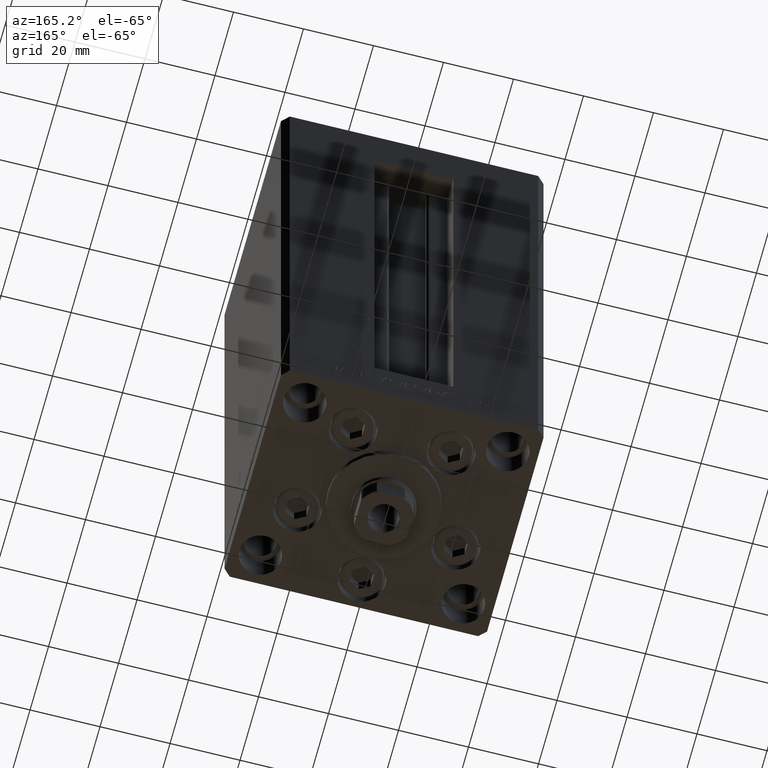
[diagram: clean part render]
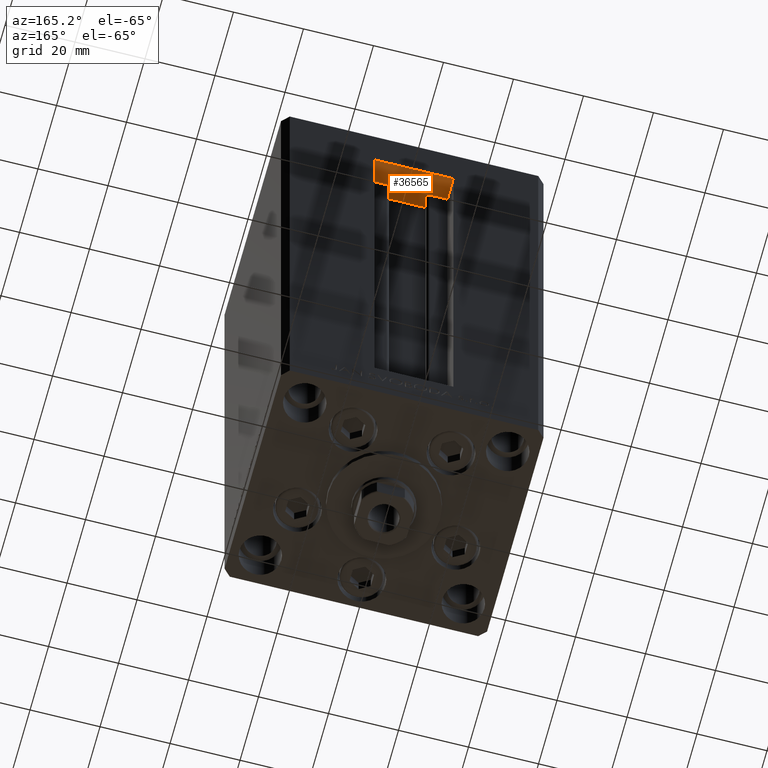
[diagram: same view with one face highlighted and labeled with its STEP entity id]
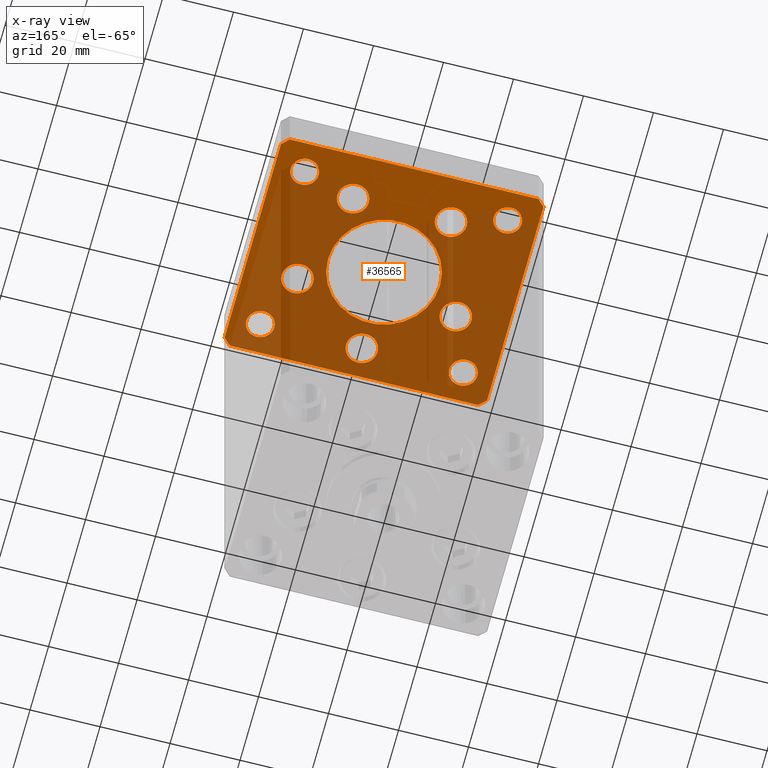
[diagram: x-ray of the same camera — body ghosted, the highlighted face saturated]
A machine part, auxiliary view. The second image highlights one B-rep face of the part: STEP entity #36565.
The next image is the same camera in x-ray: the body ghosted, the highlighted face saturated — about 77% of this face is hidden behind the body in this view.
In plain terms, the highlighted planar face has unit normal (0, 0, 1).
Its self-contained STEP definition (entity closure, byte-faithful):
#103 = EDGE_LOOP ( 'NONE', ( #28146, #39239 ) ) ;
#190 = DIRECTION ( 'NONE',  ( 0.000000000000000000, 0.000000000000000000, 1.000000000000000000 ) ) ;
#539 = ORIENTED_EDGE ( 'NONE', *, *, #44942, .F. ) ;
#1403 = AXIS2_PLACEMENT_3D ( 'NONE', #28638, #17601, #44207 ) ;
#1482 = EDGE_CURVE ( 'NONE', #16166, #37822, #17703, .T. ) ;
#1662 = ORIENTED_EDGE ( 'NONE', *, *, #33135, .F. ) ;
#1817 = DIRECTION ( 'NONE',  ( 0.7071067811865487940, 0.7071067811865463515, 0.000000000000000000 ) ) ;
#2120 = ORIENTED_EDGE ( 'NONE', *, *, #34519, .F. ) ;
#2228 = CIRCLE ( 'NONE', #1403, 4.499999999999999112 ) ;
#2606 = ORIENTED_EDGE ( 'NONE', *, *, #46643, .F. ) ;
#2636 = DIRECTION ( 'NONE',  ( 0.7071067811865474617, -0.7071067811865474617, 0.000000000000000000 ) ) ;
#2888 = CARTESIAN_POINT ( 'NONE',  ( 9.491068579633218150, 19.50000000000000000, -15.00000000000000000 ) ) ;
#2903 = CARTESIAN_POINT ( 'NONE',  ( 35.49999999999992184, 32.50000000000000711, -15.00000000000000000 ) ) ;
#3156 = CIRCLE ( 'NONE', #16009, 4.499999999999999112 ) ;
#3164 = VERTEX_POINT ( 'NONE', #33406 ) ;
#3684 = CARTESIAN_POINT ( 'NONE',  ( -13.99106857963322703, 19.49999999999999645, -15.00000000000000000 ) ) ;
#3738 = AXIS2_PLACEMENT_3D ( 'NONE', #21671, #10344, #10596 ) ;
#3953 = EDGE_CURVE ( 'NONE', #33588, #8808, #14585, .T. ) ;
#3993 = EDGE_CURVE ( 'NONE', #5642, #30111, #27417, .T. ) ;
#4090 = ORIENTED_EDGE ( 'NONE', *, *, #16353, .F. ) ;
#5283 = CARTESIAN_POINT ( 'NONE',  ( -18.12741699796952233, -8.000000000000005329, -15.00000000000000000 ) ) ;
#5636 = DIRECTION ( 'NONE',  ( 0.000000000000000000, -0.000000000000000000, -1.000000000000000000 ) ) ;
#5642 = VERTEX_POINT ( 'NONE', #10174 ) ;
#5727 = VECTOR ( 'NONE', #1817, 1000.000000000000000 ) ;
#5855 = DIRECTION ( 'NONE',  ( -1.478780668045802821E-15, 1.000000000000000000, 0.000000000000000000 ) ) ;
#6273 = DIRECTION ( 'NONE',  ( 0.000000000000000000, -0.000000000000000000, -1.000000000000000000 ) ) ;
#6338 = EDGE_CURVE ( 'NONE', #30725, #41695, #15193, .T. ) ;
#6375 = CARTESIAN_POINT ( 'NONE',  ( 37.49999999999992184, 30.50000000000001066, -15.00000000000000000 ) ) ;
#6425 = AXIS2_PLACEMENT_3D ( 'NONE', #32818, #48611, #47860 ) ;
#6904 = AXIS2_PLACEMENT_3D ( 'NONE', #31469, #38747, #11869 ) ;
#6924 = EDGE_CURVE ( 'NONE', #11489, #38437, #8248, .T. ) ;
#7019 = CIRCLE ( 'NONE', #6904, 4.000000000000003553 ) ;
#7049 = VECTOR ( 'NONE', #27420, 1000.000000000000000 ) ;
#7064 = VERTEX_POINT ( 'NONE', #24584 ) ;
#7294 = CARTESIAN_POINT ( 'NONE',  ( 37.50000000000001421, -30.50000000000000711, -15.00000000000000000 ) ) ;
#7397 = EDGE_LOOP ( 'NONE', ( #12609, #41262 ) ) ;
#8036 = CIRCLE ( 'NONE', #22484, 4.000000000000003553 ) ;
#8130 = CARTESIAN_POINT ( 'NONE',  ( -37.49999999999998579, -30.50000000000001421, -15.00000000000000000 ) ) ;
#8203 = DIRECTION ( 'NONE',  ( 1.000000000000000000, 0.000000000000000000, 0.000000000000000000 ) ) ;
#8248 = CIRCLE ( 'NONE', #30711, 4.500000000000005329 ) ;
#8264 = CARTESIAN_POINT ( 'NONE',  ( 13.99106857963322348, 19.50000000000000000, -15.00000000000000000 ) ) ;
#8334 = CARTESIAN_POINT ( 'NONE',  ( 0.000000000000000000, 0.000000000000000000, -15.00000000000000000 ) ) ;
#8498 = CARTESIAN_POINT ( 'NONE',  ( -16.00000000000000000, 1.959434878635764737E-15, -15.00000000000000000 ) ) ;
#8808 = VERTEX_POINT ( 'NONE', #36749 ) ;
#9193 = VECTOR ( 'NONE', #37080, 1000.000000000000000 ) ;
#9873 = ORIENTED_EDGE ( 'NONE', *, *, #6338, .F. ) ;
#10174 = CARTESIAN_POINT ( 'NONE',  ( -33.00000000000000711, -23.99999999999999289, -15.00000000000000000 ) ) ;
#10181 = AXIS2_PLACEMENT_3D ( 'NONE', #46150, #190, #38631 ) ;
#10211 = ORIENTED_EDGE ( 'NONE', *, *, #3993, .F. ) ;
#10342 = ORIENTED_EDGE ( 'NONE', *, *, #26006, .F. ) ;
#10344 = DIRECTION ( 'NONE',  ( 0.000000000000000000, -0.000000000000000000, -1.000000000000000000 ) ) ;
#10596 = DIRECTION ( 'NONE',  ( 1.000000000000000000, 0.000000000000000000, 0.000000000000000000 ) ) ;
#10634 = VERTEX_POINT ( 'NONE', #23222 ) ;
#10696 = LINE ( 'NONE', #2903, #9193 ) ;
#10723 = AXIS2_PLACEMENT_3D ( 'NONE', #8334, #39474, #35228 ) ;
#11098 = ORIENTED_EDGE ( 'NONE', *, *, #16124, .F. ) ;
#11489 = VERTEX_POINT ( 'NONE', #2888 ) ;
#11597 = DIRECTION ( 'NONE',  ( 0.000000000000000000, -0.000000000000000000, -1.000000000000000000 ) ) ;
#11869 = DIRECTION ( 'NONE',  ( -1.000000000000000000, 0.000000000000000000, 0.000000000000000000 ) ) ;
#11995 = AXIS2_PLACEMENT_3D ( 'NONE', #27544, #5636, #46607 ) ;
#12103 = ORIENTED_EDGE ( 'NONE', *, *, #31896, .F. ) ;
#12483 = VECTOR ( 'NONE', #43316, 999.9999999999998863 ) ;
#12609 = ORIENTED_EDGE ( 'NONE', *, *, #24097, .T. ) ;
#12690 = EDGE_CURVE ( 'NONE', #10634, #30082, #13118, .T. ) ;
#13015 = CARTESIAN_POINT ( 'NONE',  ( 2.939152317953647500E-15, -24.00000000000000000, -15.00000000000000000 ) ) ;
#13058 = DIRECTION ( 'NONE',  ( 1.000000000000000000, 0.000000000000000000, 0.000000000000000000 ) ) ;
#13118 = CIRCLE ( 'NONE', #10723, 16.00000000000000000 ) ;
#13644 = CIRCLE ( 'NONE', #6425, 4.499999999999997335 ) ;
#14081 = CARTESIAN_POINT ( 'NONE',  ( -22.62741699796951877, -8.000000000000005329, -15.00000000000000000 ) ) ;
#14585 = CIRCLE ( 'NONE', #20995, 4.000000000000000000 ) ;
#14979 = FACE_BOUND ( 'NONE', #22568, .T. ) ;
#15124 = DIRECTION ( 'NONE',  ( -0.000000000000000000, -0.000000000000000000, -1.000000000000000000 ) ) ;
#15193 = LINE ( 'NONE', #49589, #35480 ) ;
#15319 = EDGE_CURVE ( 'NONE', #41828, #48820, #23676, .T. ) ;
#15329 = CIRCLE ( 'NONE', #26561, 16.00000000000000000 ) ;
#15469 = FACE_BOUND ( 'NONE', #27049, .T. ) ;
#15963 = FACE_BOUND ( 'NONE', #103, .T. ) ;
#16009 = AXIS2_PLACEMENT_3D ( 'NONE', #3684, #42620, #8203 ) ;
#16081 = ORIENTED_EDGE ( 'NONE', *, *, #12690, .F. ) ;
#16124 = EDGE_CURVE ( 'NONE', #25009, #21979, #10696, .T. ) ;
#16166 = VERTEX_POINT ( 'NONE', #18754 ) ;
#16292 = CARTESIAN_POINT ( 'NONE',  ( 29.00000000000001066, 24.00000000000000711, -15.00000000000000000 ) ) ;
#16353 = EDGE_CURVE ( 'NONE', #18403, #25009, #35783, .T. ) ;
#16454 = VERTEX_POINT ( 'NONE', #48551 ) ;
#16488 = EDGE_CURVE ( 'NONE', #17828, #18403, #41274, .T. ) ;
#16612 = ORIENTED_EDGE ( 'NONE', *, *, #36873, .F. ) ;
#16694 = CARTESIAN_POINT ( 'NONE',  ( 25.00000000000000711, -23.99999999999999289, -15.00000000000000000 ) ) ;
#16835 = DIRECTION ( 'NONE',  ( -0.000000000000000000, -0.000000000000000000, -1.000000000000000000 ) ) ;
#17177 = DIRECTION ( 'NONE',  ( 1.000000000000000000, 9.773090005503140331E-17, 0.000000000000000000 ) ) ;
#17541 = AXIS2_PLACEMENT_3D ( 'NONE', #20177, #31480, #19933 ) ;
#17601 = DIRECTION ( 'NONE',  ( 0.000000000000000000, -0.000000000000000000, -1.000000000000000000 ) ) ;
#17639 = CIRCLE ( 'NONE', #28853, 4.000000000000003553 ) ;
#17703 = CIRCLE ( 'NONE', #45753, 4.000000000000003553 ) ;
#17828 = VERTEX_POINT ( 'NONE', #7294 ) ;
#18076 = EDGE_CURVE ( 'NONE', #44755, #3164, #35751, .T. ) ;
#18104 = DIRECTION ( 'NONE',  ( 1.000000000000000000, 0.000000000000000000, 0.000000000000000000 ) ) ;
#18292 = EDGE_LOOP ( 'NONE', ( #43352, #37267 ) ) ;
#18403 = VERTEX_POINT ( 'NONE', #6375 ) ;
#18607 = AXIS2_PLACEMENT_3D ( 'NONE', #43696, #16835, #31424 ) ;
#18659 = CARTESIAN_POINT ( 'NONE',  ( 29.00000000000001066, -23.99999999999999289, -15.00000000000000000 ) ) ;
#18754 = CARTESIAN_POINT ( 'NONE',  ( 33.00000000000001421, 24.00000000000000711, -15.00000000000000000 ) ) ;
#18763 = FACE_BOUND ( 'NONE', #34889, .T. ) ;
#18766 = VERTEX_POINT ( 'NONE', #32383 ) ;
#19933 = DIRECTION ( 'NONE',  ( -1.000000000000000000, 0.000000000000000000, 0.000000000000000000 ) ) ;
#20070 = DIRECTION ( 'NONE',  ( 1.000000000000000000, 0.000000000000000000, 0.000000000000000000 ) ) ;
#20177 = CARTESIAN_POINT ( 'NONE',  ( -29.00000000000001066, -23.99999999999999289, -15.00000000000000000 ) ) ;
#20512 = CIRCLE ( 'NONE', #27753, 4.499999999999997335 ) ;
#20893 = ORIENTED_EDGE ( 'NONE', *, *, #26080, .F. ) ;
#20946 = LINE ( 'NONE', #36258, #42257 ) ;
#20995 = AXIS2_PLACEMENT_3D ( 'NONE', #47453, #26731, #13058 ) ;
#21019 = CARTESIAN_POINT ( 'NONE',  ( -35.49999999999998579, -32.50000000000001421, -15.00000000000000000 ) ) ;
#21368 = DIRECTION ( 'NONE',  ( 1.000000000000000000, 0.000000000000000000, 0.000000000000000000 ) ) ;
#21567 = CARTESIAN_POINT ( 'NONE',  ( -25.00000000000001066, -23.99999999999999289, -15.00000000000000000 ) ) ;
#21671 = CARTESIAN_POINT ( 'NONE',  ( 13.99106857963322348, 19.50000000000000000, -15.00000000000000000 ) ) ;
#21865 = EDGE_CURVE ( 'NONE', #18766, #41977, #7019, .T. ) ;
#21979 = VERTEX_POINT ( 'NONE', #43738 ) ;
#22100 = CARTESIAN_POINT ( 'NONE',  ( 2.939152317953647500E-15, -24.00000000000000000, -15.00000000000000000 ) ) ;
#22128 = LINE ( 'NONE', #48219, #32210 ) ;
#22484 = AXIS2_PLACEMENT_3D ( 'NONE', #23973, #26996, #42310 ) ;
#22568 = EDGE_LOOP ( 'NONE', ( #28676, #39611 ) ) ;
#23013 = FACE_BOUND ( 'NONE', #7397, .T. ) ;
#23222 = CARTESIAN_POINT ( 'NONE',  ( 16.00000000000000000, 0.000000000000000000, -15.00000000000000000 ) ) ;
#23355 = DIRECTION ( 'NONE',  ( 1.000000000000000000, 0.000000000000000000, 0.000000000000000000 ) ) ;
#23606 = DIRECTION ( 'NONE',  ( 0.000000000000000000, -0.000000000000000000, -1.000000000000000000 ) ) ;
#23676 = CIRCLE ( 'NONE', #46094, 4.500000000000000888 ) ;
#23973 = CARTESIAN_POINT ( 'NONE',  ( 29.00000000000001066, 24.00000000000000711, -15.00000000000000000 ) ) ;
#24097 = EDGE_CURVE ( 'NONE', #8808, #33588, #27869, .T. ) ;
#24578 = CARTESIAN_POINT ( 'NONE',  ( 35.50000000000000711, -32.50000000000000711, -15.00000000000000000 ) ) ;
#24584 = CARTESIAN_POINT ( 'NONE',  ( -18.49106857963322526, 19.49999999999999645, -15.00000000000000000 ) ) ;
#24820 = DIRECTION ( 'NONE',  ( 1.000000000000000000, 0.000000000000000000, 0.000000000000000000 ) ) ;
#24986 = EDGE_LOOP ( 'NONE', ( #9873, #10342, #37268, #11098, #4090, #40474, #36031, #12103 ) ) ;
#25009 = VERTEX_POINT ( 'NONE', #48259 ) ;
#25278 = EDGE_LOOP ( 'NONE', ( #20893, #36089 ) ) ;
#25418 = CIRCLE ( 'NONE', #3738, 4.500000000000005329 ) ;
#25894 = DIRECTION ( 'NONE',  ( -0.7071067811865426878, -0.7071067811865524577, 0.000000000000000000 ) ) ;
#26006 = EDGE_CURVE ( 'NONE', #16454, #30725, #42727, .T. ) ;
#26080 = EDGE_CURVE ( 'NONE', #26344, #7064, #2228, .T. ) ;
#26344 = VERTEX_POINT ( 'NONE', #34405 ) ;
#26440 = CARTESIAN_POINT ( 'NONE',  ( 22.62741699796951877, -8.000000000000000000, -15.00000000000000000 ) ) ;
#26561 = AXIS2_PLACEMENT_3D ( 'NONE', #44956, #6273, #21368 ) ;
#26731 = DIRECTION ( 'NONE',  ( 0.000000000000000000, 0.000000000000000000, 1.000000000000000000 ) ) ;
#26781 = FACE_OUTER_BOUND ( 'NONE', #24986, .T. ) ;
#26996 = DIRECTION ( 'NONE',  ( 0.000000000000000000, 0.000000000000000000, 1.000000000000000000 ) ) ;
#27021 = FACE_BOUND ( 'NONE', #37858, .T. ) ;
#27049 = EDGE_LOOP ( 'NONE', ( #2120, #43248 ) ) ;
#27272 = FACE_BOUND ( 'NONE', #25278, .T. ) ;
#27417 = CIRCLE ( 'NONE', #18607, 3.999999999999996447 ) ;
#27420 = DIRECTION ( 'NONE',  ( 4.550094363217855288E-16, -1.000000000000000000, 0.000000000000000000 ) ) ;
#27544 = CARTESIAN_POINT ( 'NONE',  ( 22.62741699796951877, -8.000000000000000000, -15.00000000000000000 ) ) ;
#27753 = AXIS2_PLACEMENT_3D ( 'NONE', #14081, #29406, #18104 ) ;
#27784 = CARTESIAN_POINT ( 'NONE',  ( -27.12741699796951877, -8.000000000000005329, -15.00000000000000000 ) ) ;
#27813 = EDGE_CURVE ( 'NONE', #7064, #26344, #3156, .T. ) ;
#27869 = CIRCLE ( 'NONE', #10181, 4.000000000000000000 ) ;
#28139 = CARTESIAN_POINT ( 'NONE',  ( 18.49106857963322881, 19.50000000000000000, -15.00000000000000000 ) ) ;
#28146 = ORIENTED_EDGE ( 'NONE', *, *, #21865, .F. ) ;
#28638 = CARTESIAN_POINT ( 'NONE',  ( -13.99106857963322703, 19.49999999999999645, -15.00000000000000000 ) ) ;
#28676 = ORIENTED_EDGE ( 'NONE', *, *, #1482, .T. ) ;
#28853 = AXIS2_PLACEMENT_3D ( 'NONE', #18659, #15124, #30450 ) ;
#29228 = LINE ( 'NONE', #48287, #5727 ) ;
#29406 = DIRECTION ( 'NONE',  ( 0.000000000000000000, -0.000000000000000000, -1.000000000000000000 ) ) ;
#29800 = EDGE_CURVE ( 'NONE', #44601, #49548, #20512, .T. ) ;
#30082 = VERTEX_POINT ( 'NONE', #8498 ) ;
#30111 = VERTEX_POINT ( 'NONE', #21567 ) ;
#30134 = CARTESIAN_POINT ( 'NONE',  ( 18.12741699796951877, -8.000000000000000000, -15.00000000000000000 ) ) ;
#30158 = CARTESIAN_POINT ( 'NONE',  ( -4.499999999999999112, -24.00000000000000000, -15.00000000000000000 ) ) ;
#30450 = DIRECTION ( 'NONE',  ( -1.000000000000000000, 0.000000000000000000, 0.000000000000000000 ) ) ;
#30711 = AXIS2_PLACEMENT_3D ( 'NONE', #8264, #23606, #23355 ) ;
#30725 = VERTEX_POINT ( 'NONE', #8130 ) ;
#31289 = DIRECTION ( 'NONE',  ( 1.000000000000000000, 0.000000000000000000, 0.000000000000000000 ) ) ;
#31424 = DIRECTION ( 'NONE',  ( -1.000000000000000000, 0.000000000000000000, 0.000000000000000000 ) ) ;
#31469 = CARTESIAN_POINT ( 'NONE',  ( 29.00000000000001066, -23.99999999999999289, -15.00000000000000000 ) ) ;
#31480 = DIRECTION ( 'NONE',  ( -0.000000000000000000, -0.000000000000000000, -1.000000000000000000 ) ) ;
#31489 = CARTESIAN_POINT ( 'NONE',  ( 25.00000000000000711, 24.00000000000000711, -15.00000000000000000 ) ) ;
#31896 = EDGE_CURVE ( 'NONE', #41695, #34586, #20946, .T. ) ;
#31975 = AXIS2_PLACEMENT_3D ( 'NONE', #34810, #42833, #31289 ) ;
#32210 = VECTOR ( 'NONE', #25894, 1000.000000000000000 ) ;
#32323 = EDGE_LOOP ( 'NONE', ( #1662, #33998 ) ) ;
#32383 = CARTESIAN_POINT ( 'NONE',  ( 33.00000000000001421, -23.99999999999999289, -15.00000000000000000 ) ) ;
#32502 = CARTESIAN_POINT ( 'NONE',  ( 37.49999999999992184, 30.50000000000001066, -15.00000000000000000 ) ) ;
#32818 = CARTESIAN_POINT ( 'NONE',  ( -22.62741699796951877, -8.000000000000005329, -15.00000000000000000 ) ) ;
#33135 = EDGE_CURVE ( 'NONE', #38437, #11489, #25418, .T. ) ;
#33406 = CARTESIAN_POINT ( 'NONE',  ( 4.500000000000003553, -24.00000000000000000, -15.00000000000000000 ) ) ;
#33588 = VERTEX_POINT ( 'NONE', #36107 ) ;
#33679 = CIRCLE ( 'NONE', #11995, 4.500000000000000888 ) ;
#33998 = ORIENTED_EDGE ( 'NONE', *, *, #6924, .F. ) ;
#34405 = CARTESIAN_POINT ( 'NONE',  ( -9.491068579633228808, 19.49999999999999645, -15.00000000000000000 ) ) ;
#34519 = EDGE_CURVE ( 'NONE', #3164, #44755, #49531, .T. ) ;
#34586 = VERTEX_POINT ( 'NONE', #24578 ) ;
#34797 = EDGE_LOOP ( 'NONE', ( #47680, #539 ) ) ;
#34810 = CARTESIAN_POINT ( 'NONE',  ( 0.000000000000000000, 0.000000000000000000, -15.00000000000000000 ) ) ;
#34889 = EDGE_LOOP ( 'NONE', ( #16612, #10211 ) ) ;
#35228 = DIRECTION ( 'NONE',  ( 1.000000000000000000, 0.000000000000000000, 0.000000000000000000 ) ) ;
#35386 = DIRECTION ( 'NONE',  ( 0.000000000000000000, 0.000000000000000000, 1.000000000000000000 ) ) ;
#35480 = VECTOR ( 'NONE', #2636, 1000.000000000000114 ) ;
#35692 = CARTESIAN_POINT ( 'NONE',  ( -37.50000000000001421, 30.49999999999998579, -15.00000000000000000 ) ) ;
#35751 = CIRCLE ( 'NONE', #48569, 4.500000000000001776 ) ;
#35783 = LINE ( 'NONE', #32502, #12483 ) ;
#35879 = DIRECTION ( 'NONE',  ( 0.000000000000000000, -0.000000000000000000, -1.000000000000000000 ) ) ;
#36031 = ORIENTED_EDGE ( 'NONE', *, *, #48306, .F. ) ;
#36089 = ORIENTED_EDGE ( 'NONE', *, *, #27813, .F. ) ;
#36107 = CARTESIAN_POINT ( 'NONE',  ( -33.00000000000000711, 24.00000000000000711, -15.00000000000000000 ) ) ;
#36258 = CARTESIAN_POINT ( 'NONE',  ( -35.49999999999998579, -32.50000000000001421, -15.00000000000000000 ) ) ;
#36565 = ADVANCED_FACE ( 'NONE', ( #27021, #46089, #15469, #42580, #37834, #27272, #14979, #23013, #26781, #15963, #18763 ), #45603, .F. ) ;
#36749 = CARTESIAN_POINT ( 'NONE',  ( -25.00000000000001066, 24.00000000000000711, -15.00000000000000000 ) ) ;
#36873 = EDGE_CURVE ( 'NONE', #30111, #5642, #39993, .T. ) ;
#37080 = DIRECTION ( 'NONE',  ( -1.000000000000000000, -1.954618001100629052E-16, 0.000000000000000000 ) ) ;
#37267 = ORIENTED_EDGE ( 'NONE', *, *, #39582, .F. ) ;
#37268 = ORIENTED_EDGE ( 'NONE', *, *, #47560, .F. ) ;
#37822 = VERTEX_POINT ( 'NONE', #31489 ) ;
#37834 = FACE_BOUND ( 'NONE', #32323, .T. ) ;
#37858 = EDGE_LOOP ( 'NONE', ( #16081, #2606 ) ) ;
#38437 = VERTEX_POINT ( 'NONE', #28139 ) ;
#38631 = DIRECTION ( 'NONE',  ( 1.000000000000000000, 0.000000000000000000, 0.000000000000000000 ) ) ;
#38747 = DIRECTION ( 'NONE',  ( -0.000000000000000000, -0.000000000000000000, -1.000000000000000000 ) ) ;
#39107 = AXIS2_PLACEMENT_3D ( 'NONE', #13015, #35879, #24820 ) ;
#39239 = ORIENTED_EDGE ( 'NONE', *, *, #40060, .F. ) ;
#39474 = DIRECTION ( 'NONE',  ( 0.000000000000000000, -0.000000000000000000, -1.000000000000000000 ) ) ;
#39582 = EDGE_CURVE ( 'NONE', #48820, #41828, #33679, .T. ) ;
#39611 = ORIENTED_EDGE ( 'NONE', *, *, #44359, .T. ) ;
#39993 = CIRCLE ( 'NONE', #17541, 3.999999999999996447 ) ;
#40060 = EDGE_CURVE ( 'NONE', #41977, #18766, #17639, .T. ) ;
#40277 = CARTESIAN_POINT ( 'NONE',  ( 37.50000000000001421, -30.50000000000000711, -15.00000000000000000 ) ) ;
#40419 = DIRECTION ( 'NONE',  ( 1.000000000000000000, 0.000000000000000000, 0.000000000000000000 ) ) ;
#40474 = ORIENTED_EDGE ( 'NONE', *, *, #16488, .F. ) ;
#41255 = DIRECTION ( 'NONE',  ( 1.000000000000000000, 0.000000000000000000, 0.000000000000000000 ) ) ;
#41262 = ORIENTED_EDGE ( 'NONE', *, *, #3953, .T. ) ;
#41274 = LINE ( 'NONE', #40277, #42952 ) ;
#41695 = VERTEX_POINT ( 'NONE', #21019 ) ;
#41828 = VERTEX_POINT ( 'NONE', #45591 ) ;
#41977 = VERTEX_POINT ( 'NONE', #16694 ) ;
#42257 = VECTOR ( 'NONE', #17177, 1000.000000000000000 ) ;
#42310 = DIRECTION ( 'NONE',  ( 1.000000000000000000, 0.000000000000000000, 0.000000000000000000 ) ) ;
#42580 = FACE_BOUND ( 'NONE', #18292, .T. ) ;
#42620 = DIRECTION ( 'NONE',  ( 0.000000000000000000, -0.000000000000000000, -1.000000000000000000 ) ) ;
#42727 = LINE ( 'NONE', #35692, #7049 ) ;
#42833 = DIRECTION ( 'NONE',  ( -0.000000000000000000, 0.000000000000000000, 1.000000000000000000 ) ) ;
#42952 = VECTOR ( 'NONE', #5855, 1000.000000000000000 ) ;
#43248 = ORIENTED_EDGE ( 'NONE', *, *, #18076, .F. ) ;
#43316 = DIRECTION ( 'NONE',  ( -0.7071067811865482389, 0.7071067811865469066, 0.000000000000000000 ) ) ;
#43352 = ORIENTED_EDGE ( 'NONE', *, *, #15319, .F. ) ;
#43696 = CARTESIAN_POINT ( 'NONE',  ( -29.00000000000001066, -23.99999999999999289, -15.00000000000000000 ) ) ;
#43738 = CARTESIAN_POINT ( 'NONE',  ( -35.50000000000002842, 32.49999999999999289, -15.00000000000000000 ) ) ;
#44207 = DIRECTION ( 'NONE',  ( 1.000000000000000000, 0.000000000000000000, 0.000000000000000000 ) ) ;
#44359 = EDGE_CURVE ( 'NONE', #37822, #16166, #8036, .T. ) ;
#44601 = VERTEX_POINT ( 'NONE', #5283 ) ;
#44755 = VERTEX_POINT ( 'NONE', #30158 ) ;
#44942 = EDGE_CURVE ( 'NONE', #49548, #44601, #13644, .T. ) ;
#44956 = CARTESIAN_POINT ( 'NONE',  ( 0.000000000000000000, 0.000000000000000000, -15.00000000000000000 ) ) ;
#45591 = CARTESIAN_POINT ( 'NONE',  ( 27.12741699796952233, -8.000000000000000000, -15.00000000000000000 ) ) ;
#45603 = PLANE ( 'NONE',  #31975 ) ;
#45753 = AXIS2_PLACEMENT_3D ( 'NONE', #16292, #35386, #20070 ) ;
#46089 = FACE_BOUND ( 'NONE', #34797, .T. ) ;
#46094 = AXIS2_PLACEMENT_3D ( 'NONE', #26440, #11597, #41255 ) ;
#46150 = CARTESIAN_POINT ( 'NONE',  ( -29.00000000000001066, 24.00000000000000711, -15.00000000000000000 ) ) ;
#46607 = DIRECTION ( 'NONE',  ( 1.000000000000000000, 0.000000000000000000, 0.000000000000000000 ) ) ;
#46643 = EDGE_CURVE ( 'NONE', #30082, #10634, #15329, .T. ) ;
#47453 = CARTESIAN_POINT ( 'NONE',  ( -29.00000000000001066, 24.00000000000000711, -15.00000000000000000 ) ) ;
#47560 = EDGE_CURVE ( 'NONE', #21979, #16454, #22128, .T. ) ;
#47680 = ORIENTED_EDGE ( 'NONE', *, *, #29800, .F. ) ;
#47860 = DIRECTION ( 'NONE',  ( 1.000000000000000000, 0.000000000000000000, 0.000000000000000000 ) ) ;
#48194 = DIRECTION ( 'NONE',  ( 0.000000000000000000, -0.000000000000000000, -1.000000000000000000 ) ) ;
#48219 = CARTESIAN_POINT ( 'NONE',  ( -35.50000000000002842, 32.49999999999999289, -15.00000000000000000 ) ) ;
#48259 = CARTESIAN_POINT ( 'NONE',  ( 35.49999999999992184, 32.50000000000000711, -15.00000000000000000 ) ) ;
#48287 = CARTESIAN_POINT ( 'NONE',  ( 35.50000000000000711, -32.50000000000000711, -15.00000000000000000 ) ) ;
#48306 = EDGE_CURVE ( 'NONE', #34586, #17828, #29228, .T. ) ;
#48551 = CARTESIAN_POINT ( 'NONE',  ( -37.50000000000001421, 30.49999999999998579, -15.00000000000000000 ) ) ;
#48569 = AXIS2_PLACEMENT_3D ( 'NONE', #22100, #48194, #40419 ) ;
#48611 = DIRECTION ( 'NONE',  ( 0.000000000000000000, -0.000000000000000000, -1.000000000000000000 ) ) ;
#48820 = VERTEX_POINT ( 'NONE', #30134 ) ;
#49531 = CIRCLE ( 'NONE', #39107, 4.500000000000001776 ) ;
#49548 = VERTEX_POINT ( 'NONE', #27784 ) ;
#49589 = CARTESIAN_POINT ( 'NONE',  ( -37.49999999999998579, -30.50000000000001421, -15.00000000000000000 ) ) ;